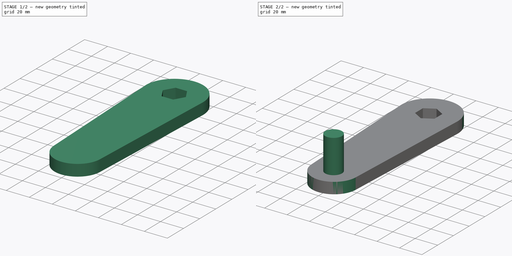
[diagram: build sequence overview — one tinted view per stage of 2, left to right]
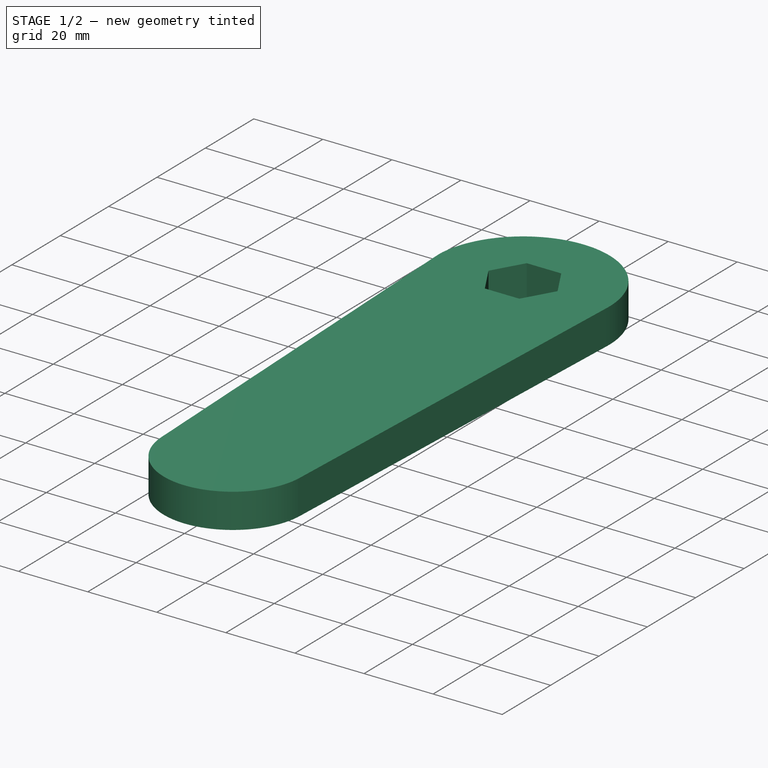
[diagram: stage 1 of 2 — iso view after this stage's code; geometry added in this stage tinted green]
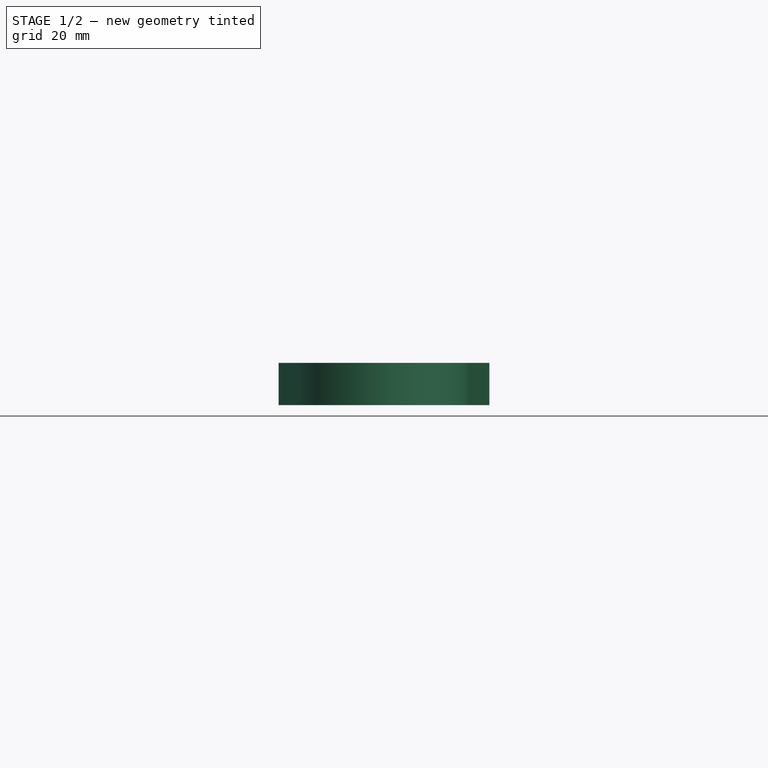
[diagram: stage 1 of 2 — front view after this stage's code; geometry added in this stage tinted green]
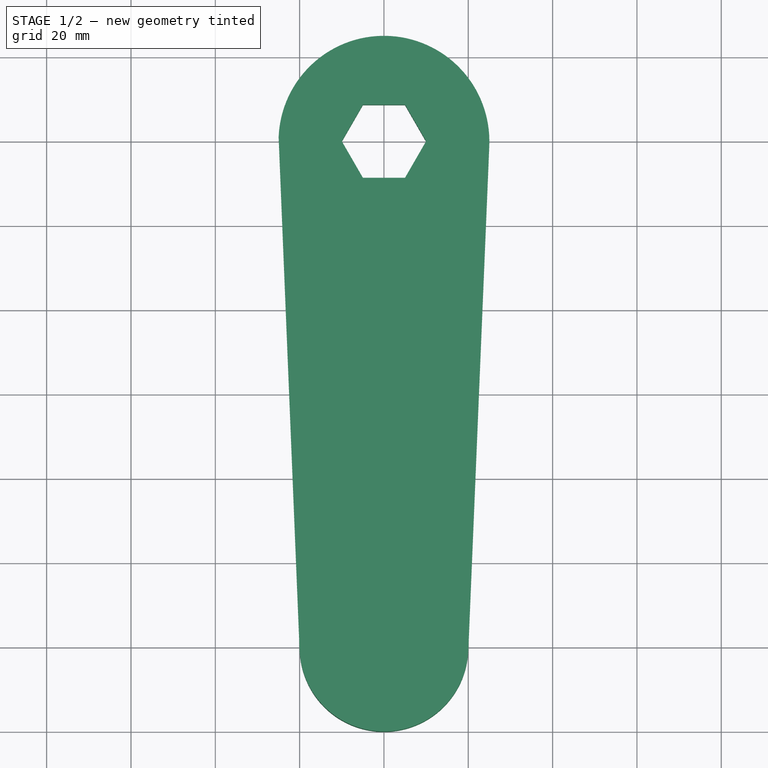
[diagram: stage 1 of 2 — top view after this stage's code; geometry added in this stage tinted green]
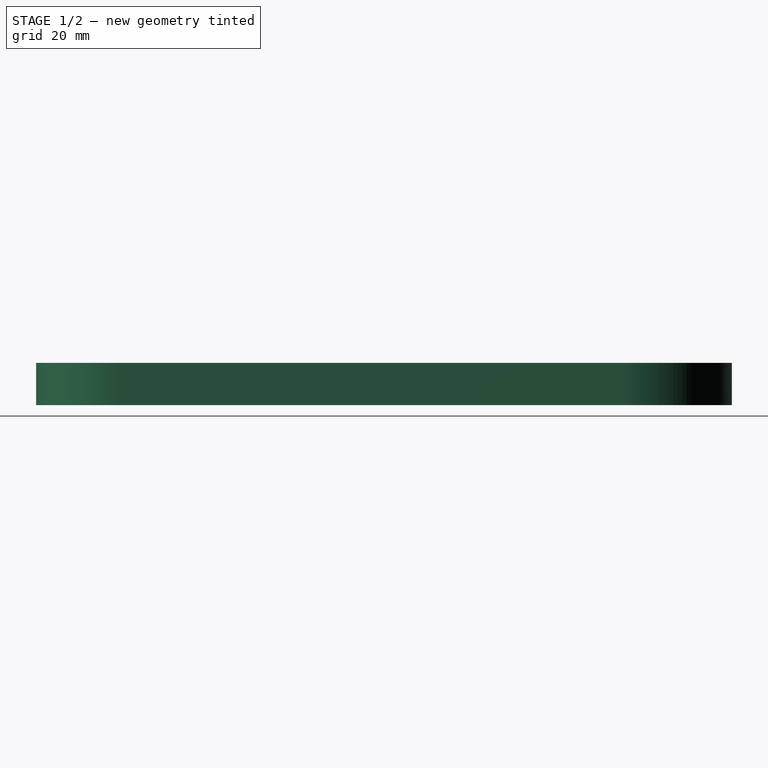
[diagram: stage 1 of 2 — right view after this stage's code; geometry added in this stage tinted green]
FCSTD DOCUMENT  (FreeCAD 0.19R)
Label: garage door crank
License: All rights reserved
LicenseURL: http://en.wikipedia.org/wiki/All_rights_reserved
objects: Sketcher::SketchObject×2, PartDesign::Pad×2, PartDesign::Body×1
note: 7 computed .brp shape members not serialized (recipe doc carries the construction recipe); baked Part::Feature solids carry a one-line shape summary decoded from their .brp

FEATURE [Sketcher::SketchObject] Sketch
  FullyConstrained = false
  MapMode = 5
  Support = -> [XY_Plane]
  sketch-geometry (15):
    g0: ArcOfCircle CenterX=0 CenterY=-2.35e-14 CenterZ=0 NormalX=0 NormalY=0 NormalZ=1 AngleXU=0 Radius=25 StartAngle=6.24165 EndAngle=9.38324
    g1: LineSegment StartX=-24.9784 StartY=1.03807 StartZ=0 EndX=-20 EndY=-120.831 EndZ=0
    g2: LineSegment StartX=24.9784 StartY=-1.03807 StartZ=0 EndX=20 EndY=-120.831 EndZ=0
    g3: ArcOfEllipse CenterX=-5e-16 CenterY=-120 CenterZ=0 NormalX=0 NormalY=0 NormalZ=1 MajorRadius=20.0173 MinorRadius=20.0137 AngleXU=0 StartAngle=3.18312 EndAngle=6.24166
    g4: LineSegment StartX=20.0173 StartY=-120 StartZ=0 EndX=-20.0173 EndY=-120 EndZ=0
    g5: LineSegment StartX=-9e-16 StartY=-99.9863 StartZ=0 EndX=0 EndY=-140.014 EndZ=0
    g6: GeomPoint X=0.377172 Y=-120 Z=0
    g7: GeomPoint X=-0.377172 Y=-120 Z=0
    g8: LineSegment StartX=-5 StartY=8.66025 StartZ=0 EndX=-10 EndY=-2.29e-14 EndZ=0
    g9: LineSegment StartX=-10 StartY=-2.29e-14 StartZ=0 EndX=-5 EndY=-8.66025 EndZ=0
    g10: LineSegment StartX=-5 StartY=-8.66025 StartZ=0 EndX=5 EndY=-8.66025 EndZ=0
    g11: LineSegment StartX=5 StartY=-8.66025 StartZ=0 EndX=10 EndY=-2.31e-14 EndZ=0
    g12: LineSegment StartX=10 StartY=-2.31e-14 StartZ=0 EndX=5 EndY=8.66025 EndZ=0
    g13: LineSegment StartX=5 StartY=8.66025 StartZ=0 EndX=-5 EndY=8.66025 EndZ=0
    g14: Circle CenterX=0 CenterY=-2.35e-14 CenterZ=0 NormalX=0 NormalY=0 NormalZ=1 AngleXU=0 Radius=10
  constraints (28):
    c: Symmetric(g0,g0,g-1)
    c: Coincident(g0,g1)
    c: InternalAlignment(g4-g7 -> g3) x4
    c: Coincident(g3,g1)
    c: Symmetric(g2,g1,g-2)
    c: PointOnObject(g5,g-2)
    c: Tangent(g3,g2) = 1.5708
    c: Tangent(g0,g2) = 1.5708
    c: DistanceY(g3,g-1) = 120
    c: Diameter(g0) = 50
    c: Coincident(g0,g-1)
    c: Coincident(g8,g9)
    c: Coincident(g9,g10)
    c: Coincident(g10,g11)
    c: Coincident(g11,g12)
    c: Coincident(g12,g13)
    c: Coincident(g13,g8)
    c: Equal(g8, g9-g13) x5
    c: PointOnObject(g8,g14)
    c: PointOnObject(g9,g14)
    c: PointOnObject(g10,g14)
    c: PointOnObject(g11,g14)
    c: PointOnObject(g12,g14)
    c: PointOnObject(g13,g14)
    c: Coincident(g14,g0)
    c: Diameter(g14) = 20
    c: Horizontal(g13)
    c: DistanceX(g1,g3) = 20
FEATURE [PartDesign::Pad] Pad
  Direction = (1,1,1)
  Length = 10
  Length2 = 100
  Profile = -> Sketch
  Type = 0
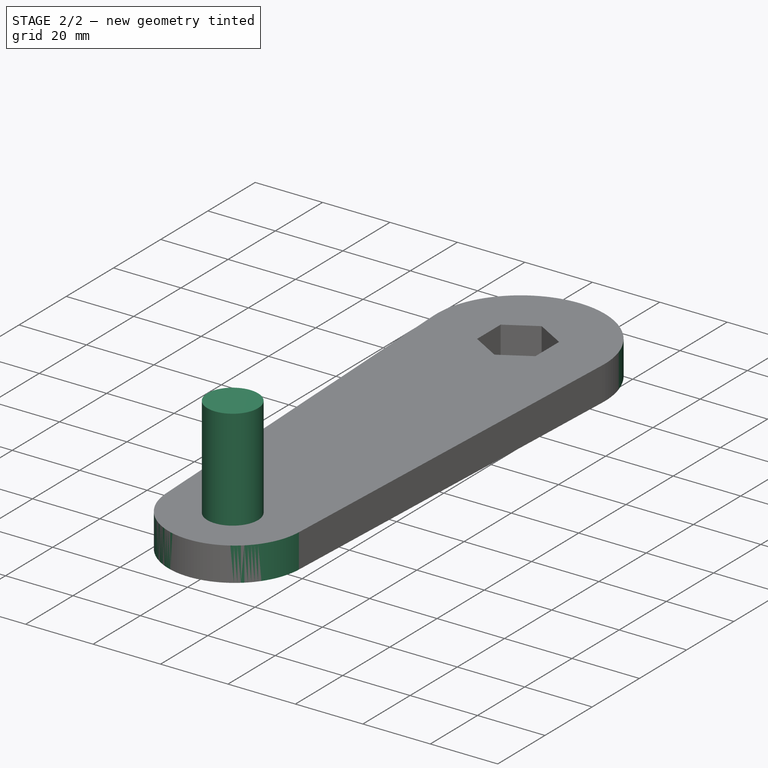
[diagram: stage 2 of 2 — iso view after this stage's code; geometry added in this stage tinted green]
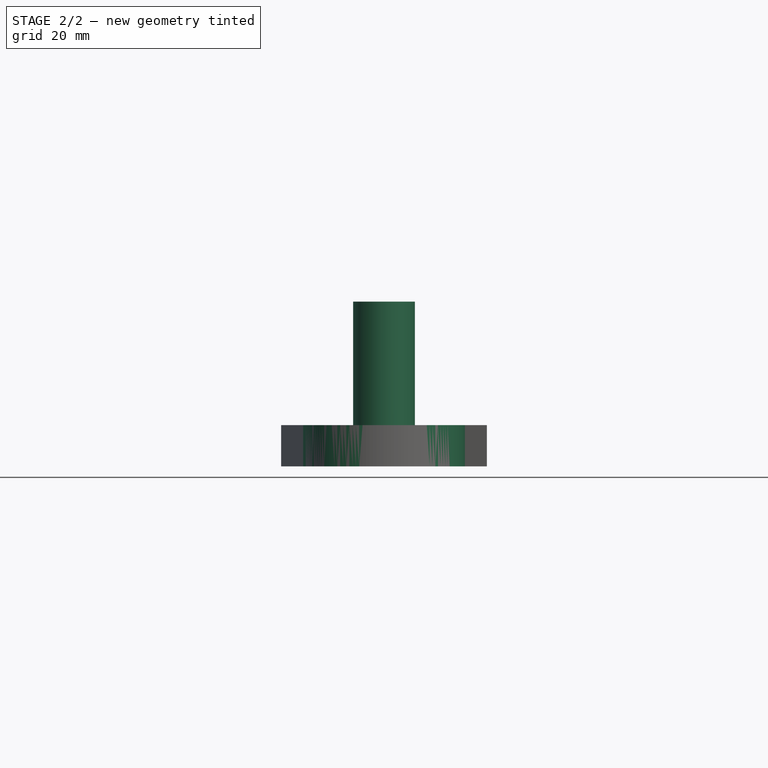
[diagram: stage 2 of 2 — front view after this stage's code; geometry added in this stage tinted green]
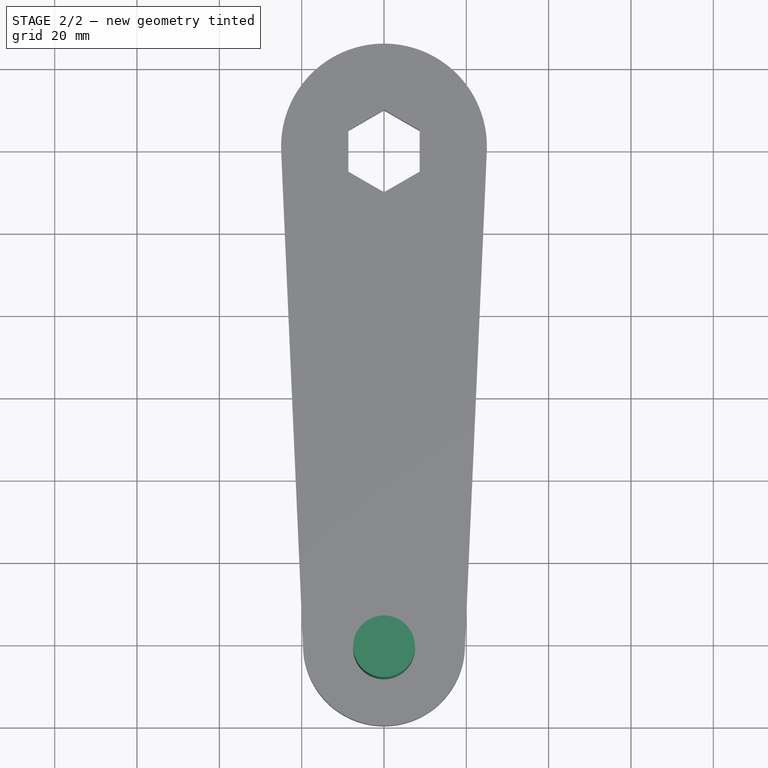
[diagram: stage 2 of 2 — top view after this stage's code; geometry added in this stage tinted green]
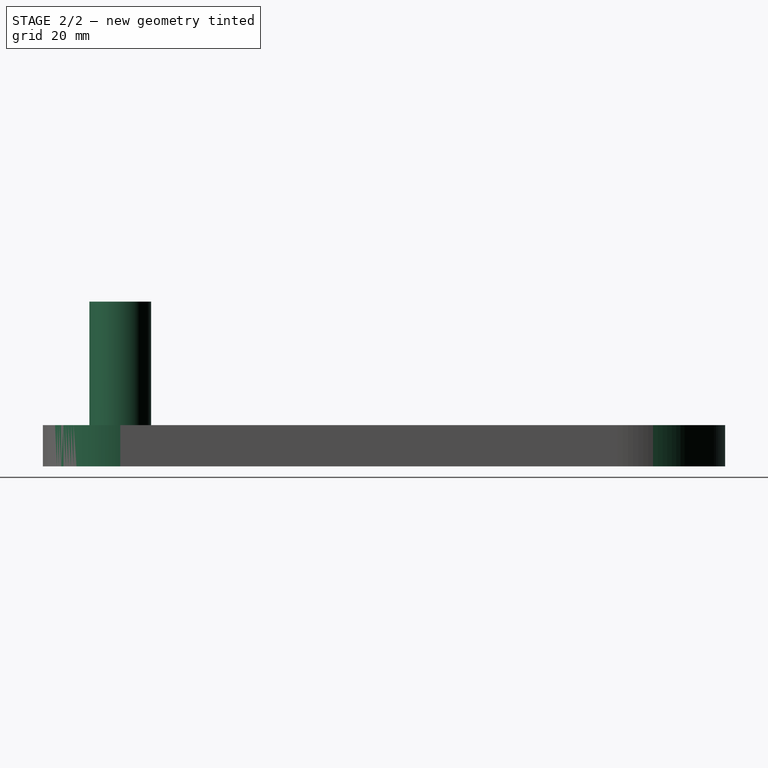
[diagram: stage 2 of 2 — right view after this stage's code; geometry added in this stage tinted green]
FEATURE [Sketcher::SketchObject] Sketch001
  ExternalGeometry = -> [Sketch]
  FullyConstrained = true
  MapMode = 5
  Placement = pos=(0,0,10) rot=(0,0,1;0rad)
  Support = -> [Pad]
  sketch-geometry (1):
    g0: Circle CenterX=0 CenterY=-2.31e-14 CenterZ=0 NormalX=0 NormalY=0 NormalZ=1 AngleXU=0 Radius=7.5
  constraints (3):
    c: PointOnObject(g0,g-2)
    c: Diameter(g0) = 15
    c: Horizontal(g-3,g0)
FEATURE [PartDesign::Pad] Pad001
  BaseFeature = -> Pad
  Direction = (1,1,1)
  Length = 30
  Length2 = 100
  Profile = -> Sketch001
  Type = 0
FEATURE [PartDesign::Body] Body
  Group = -> [Sketch,Pad,Sketch001,Pad001]
  Origin = -> Origin
  Tip = -> Pad001
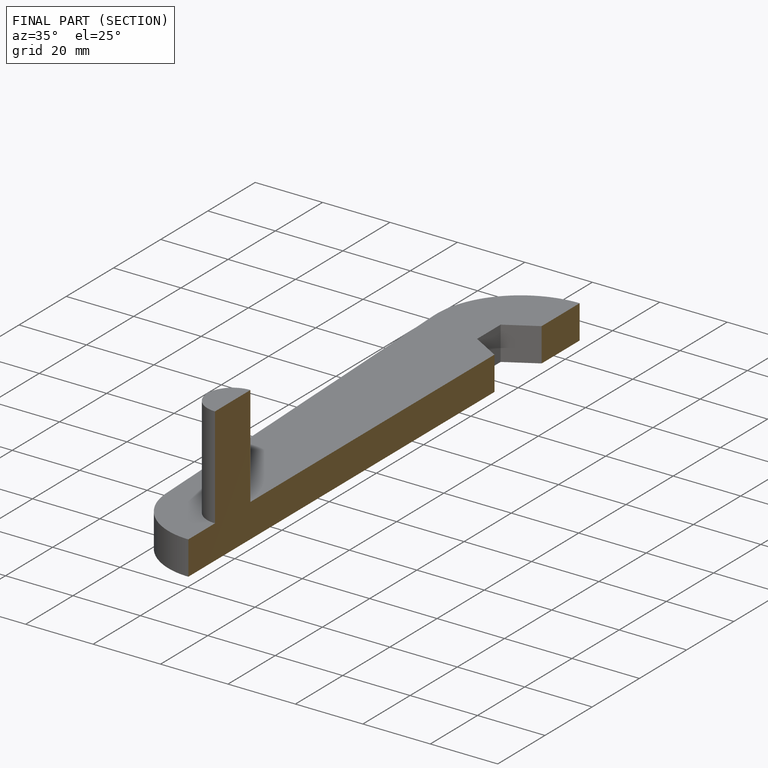
[diagram: finished part — half-section view (interior)]
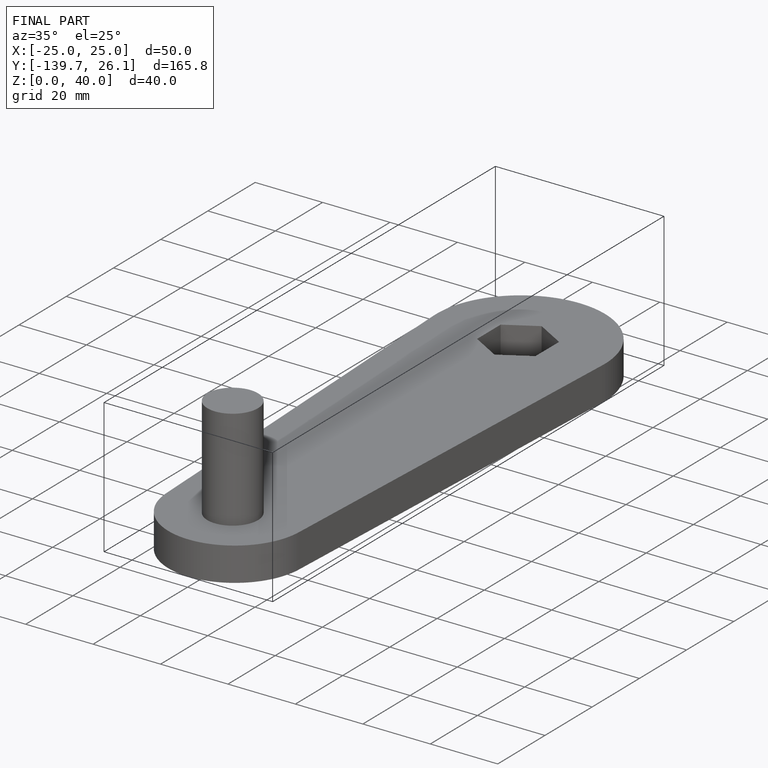
[diagram: finished part — iso view with bounding-box wireframe]
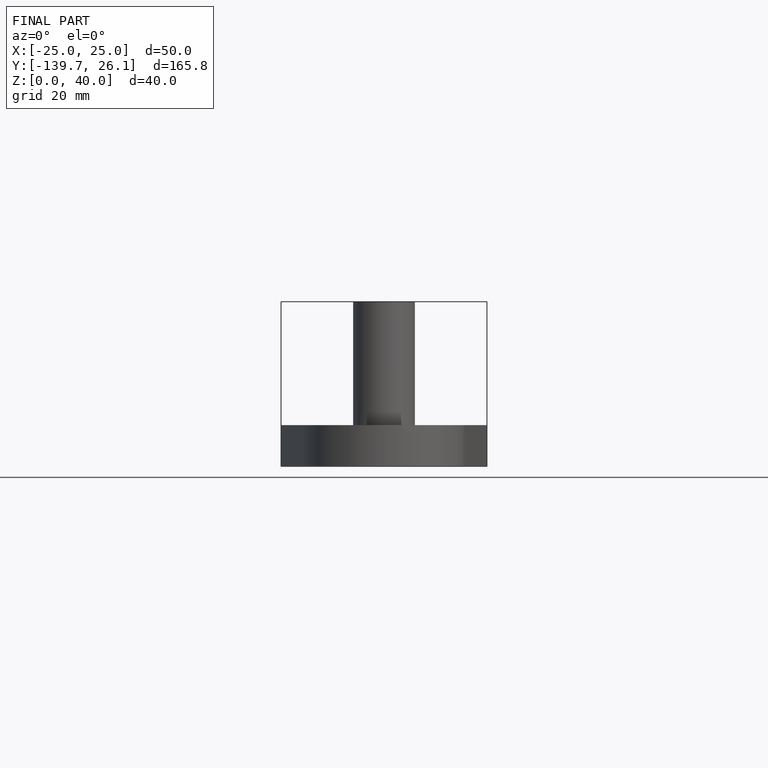
[diagram: finished part — front view with bounding-box wireframe]
